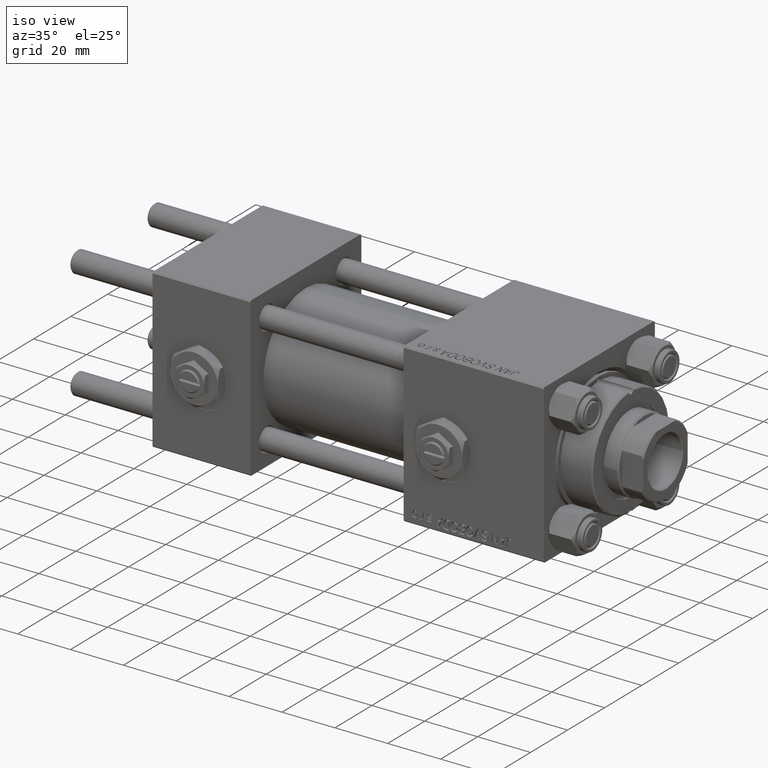
[diagram: clean part render]
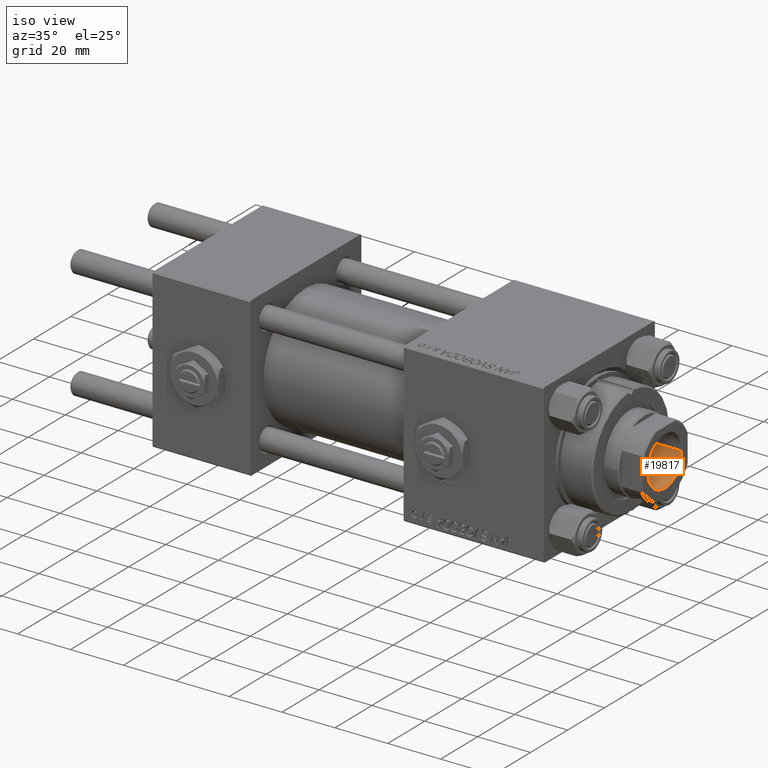
[diagram: same view with one face highlighted and labeled with its STEP entity id]
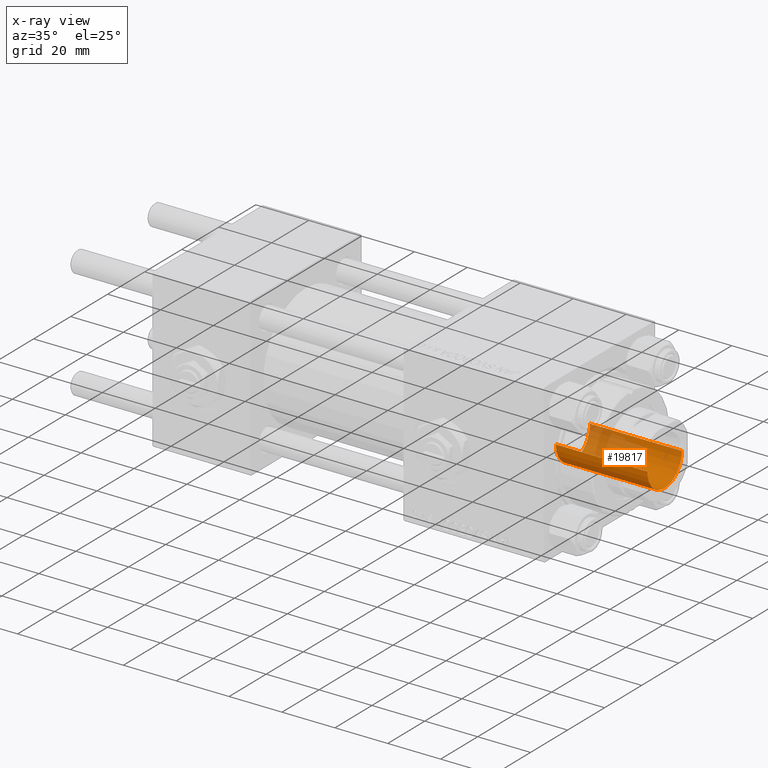
[diagram: x-ray of the same camera — body ghosted, the highlighted face saturated]
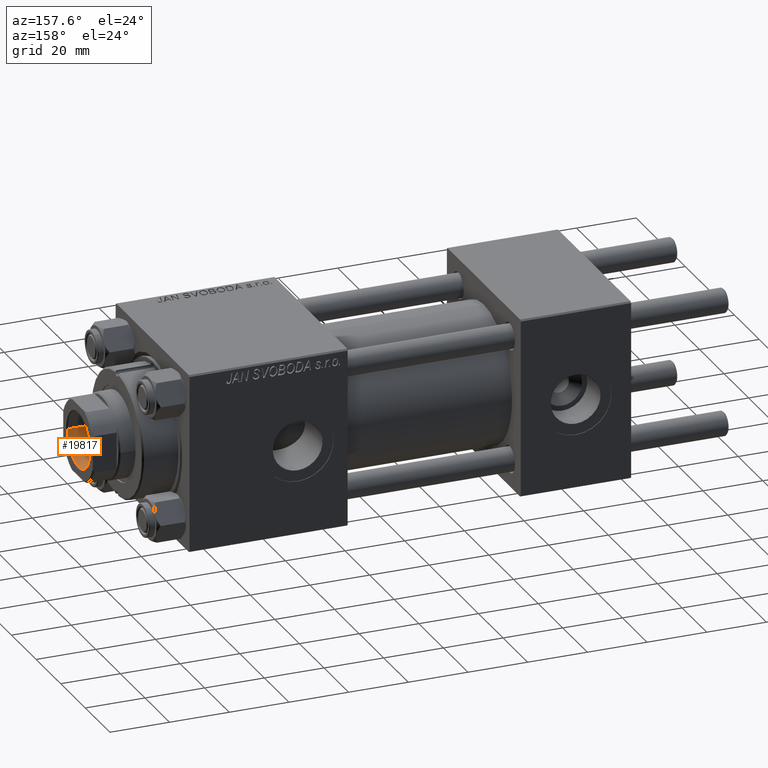
[diagram: same view with one face highlighted and labeled with its STEP entity id]
A machine part, iso view. The second image highlights one B-rep face of the part: STEP entity #19817.
The next image is the same camera in x-ray: the body ghosted, the highlighted face saturated — about 28% of this face is hidden behind the body in this view.
A second angle (auxiliary view) of the same face is appended — the face is thin or edge-on in the first view.
In plain terms, the highlighted cylindrical surface (edge-blend (fillet) strip) has radius 9.25 mm, axis along (1, 0, -0).
Its self-contained STEP definition (entity closure, byte-faithful):
#390 = EDGE_CURVE ( 'NONE', #479, #28864, #19869, .T. ) ;
#479 = VERTEX_POINT ( 'NONE', #4519 ) ;
#1574 = CARTESIAN_POINT ( 'NONE',  ( -9.249999999999994671, 1.132798289211300909E-15, 135.7000000000000455 ) ) ;
#4519 = CARTESIAN_POINT ( 'NONE',  ( 9.249999999999992895, 0.000000000000000000, 101.0000000000000000 ) ) ;
#5640 = VECTOR ( 'NONE', #44558, 1000.000000000000000 ) ;
#8867 = AXIS2_PLACEMENT_3D ( 'NONE', #29351, #42246, #45428 ) ;
#9996 = ORIENTED_EDGE ( 'NONE', *, *, #390, .F. ) ;
#10472 = EDGE_CURVE ( 'NONE', #28864, #30363, #27458, .T. ) ;
#11254 = AXIS2_PLACEMENT_3D ( 'NONE', #50940, #26190, #49903 ) ;
#12488 = VERTEX_POINT ( 'NONE', #17767 ) ;
#13129 = AXIS2_PLACEMENT_3D ( 'NONE', #47535, #28030, #23807 ) ;
#14016 = CYLINDRICAL_SURFACE ( 'NONE', #8867, 9.249999999999994671 ) ;
#14536 = CARTESIAN_POINT ( 'NONE',  ( -9.249999999999994671, 1.132798289211300909E-15, 136.0000000000000000 ) ) ;
#15429 = EDGE_CURVE ( 'NONE', #12488, #30363, #27248, .T. ) ;
#17767 = CARTESIAN_POINT ( 'NONE',  ( 9.249999999999994671, 0.000000000000000000, 135.7000000000000455 ) ) ;
#18510 = DIRECTION ( 'NONE',  ( -0.000000000000000000, -0.000000000000000000, 1.000000000000000000 ) ) ;
#18847 = CARTESIAN_POINT ( 'NONE',  ( -9.249999999999992895, 1.132798289211300712E-15, 101.0000000000000000 ) ) ;
#19817 = ADVANCED_FACE ( 'NONE', ( #46458 ), #14016, .F. ) ;
#19869 = CIRCLE ( 'NONE', #13129, 9.249999999999992895 ) ;
#23154 = ORIENTED_EDGE ( 'NONE', *, *, #49104, .T. ) ;
#23807 = DIRECTION ( 'NONE',  ( 1.000000000000000000, 0.000000000000000000, 0.000000000000000000 ) ) ;
#25818 = ORIENTED_EDGE ( 'NONE', *, *, #15429, .T. ) ;
#26190 = DIRECTION ( 'NONE',  ( 0.000000000000000000, 0.000000000000000000, 1.000000000000000000 ) ) ;
#27140 = ORIENTED_EDGE ( 'NONE', *, *, #10472, .F. ) ;
#27248 = CIRCLE ( 'NONE', #11254, 9.249999999999994671 ) ;
#27458 = LINE ( 'NONE', #14536, #38612 ) ;
#28030 = DIRECTION ( 'NONE',  ( -0.000000000000000000, -0.000000000000000000, 1.000000000000000000 ) ) ;
#28484 = LINE ( 'NONE', #44289, #5640 ) ;
#28864 = VERTEX_POINT ( 'NONE', #18847 ) ;
#29351 = CARTESIAN_POINT ( 'NONE',  ( 0.000000000000000000, 0.000000000000000000, 136.0000000000000000 ) ) ;
#30363 = VERTEX_POINT ( 'NONE', #1574 ) ;
#32111 = EDGE_LOOP ( 'NONE', ( #27140, #9996, #23154, #25818 ) ) ;
#38612 = VECTOR ( 'NONE', #18510, 1000.000000000000000 ) ;
#42246 = DIRECTION ( 'NONE',  ( -0.000000000000000000, -0.000000000000000000, 1.000000000000000000 ) ) ;
#44289 = CARTESIAN_POINT ( 'NONE',  ( 9.249999999999994671, 0.000000000000000000, 136.0000000000000000 ) ) ;
#44558 = DIRECTION ( 'NONE',  ( -0.000000000000000000, -0.000000000000000000, 1.000000000000000000 ) ) ;
#45428 = DIRECTION ( 'NONE',  ( 1.000000000000000000, 0.000000000000000000, 0.000000000000000000 ) ) ;
#46458 = FACE_OUTER_BOUND ( 'NONE', #32111, .T. ) ;
#47535 = CARTESIAN_POINT ( 'NONE',  ( 0.000000000000000000, 0.000000000000000000, 101.0000000000000000 ) ) ;
#49104 = EDGE_CURVE ( 'NONE', #479, #12488, #28484, .T. ) ;
#49903 = DIRECTION ( 'NONE',  ( 1.000000000000000000, 0.000000000000000000, 0.000000000000000000 ) ) ;
#50940 = CARTESIAN_POINT ( 'NONE',  ( 0.000000000000000000, 0.000000000000000000, 135.7000000000000455 ) ) ;